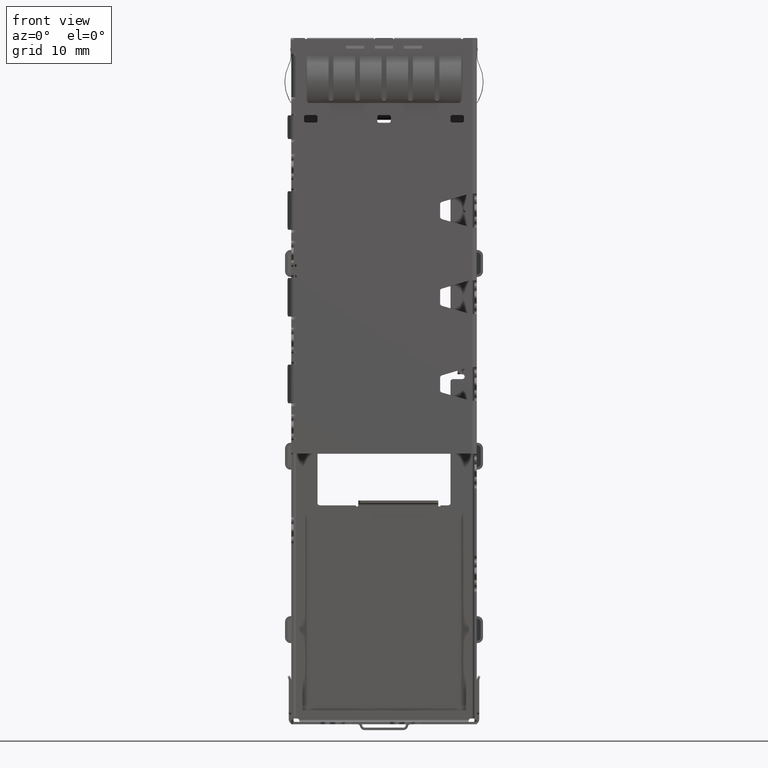
[diagram: clean part render]
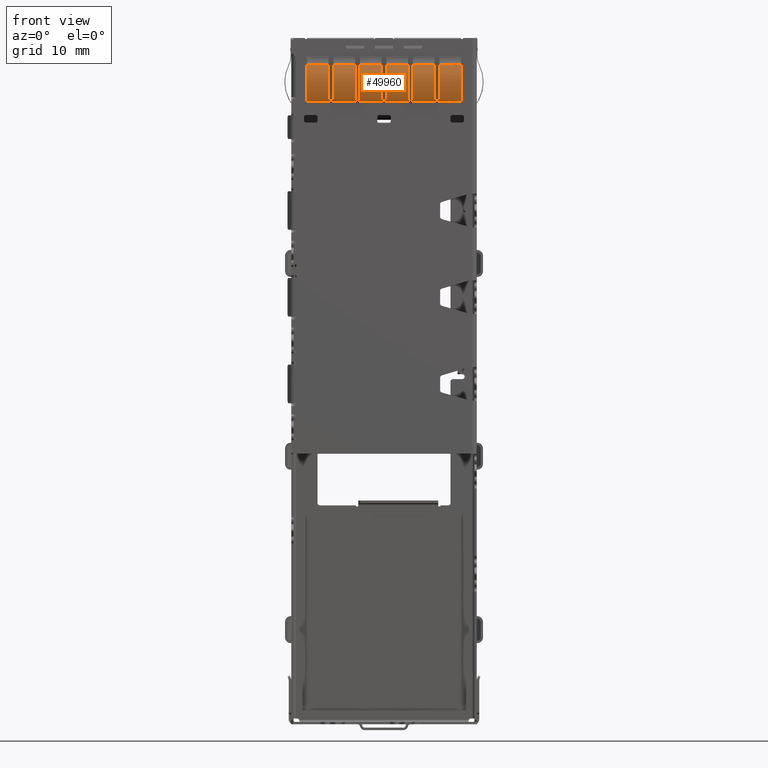
[diagram: same view with one face highlighted and labeled with its STEP entity id]
A machine part, front view. The second image highlights one B-rep face of the part: STEP entity #49960.
In plain terms, the highlighted cylindrical surface (partial cylindrical patch) has radius 4.0153 mm, axis along (-1, 0, 0).
Its self-contained STEP definition (entity closure, byte-faithful):
#54 = DIRECTION ( 'NONE',  ( -1.000000000000000000, 4.235164736271499769E-19, 4.235164736271499769E-19 ) ) ;
#455 = VECTOR ( 'NONE', #49056, 1000.000000000000000 ) ;
#705 = VERTEX_POINT ( 'NONE', #24596 ) ;
#770 = ORIENTED_EDGE ( 'NONE', *, *, #68800, .T. ) ;
#993 = CARTESIAN_POINT ( 'NONE',  ( -5.737573108332148841, 0.2225746253912066208, -6.282746775595231981 ) ) ;
#1711 = EDGE_CURVE ( 'NONE', #65231, #33174, #5435, .T. ) ;
#1960 = CARTESIAN_POINT ( 'NONE',  ( 0.1301086442512661423, 0.1562188122740799101, -6.411342872839279394 ) ) ;
#2039 = CARTESIAN_POINT ( 'NONE',  ( -2.998896241133398366, 0.2483748786855009827, -6.229764501679989408 ) ) ;
#2156 = VERTEX_POINT ( 'NONE', #37979 ) ;
#2925 = DIRECTION ( 'NONE',  ( 1.000000000000000000, -4.235164736271499769E-19, 4.574263953701799970E-35 ) ) ;
#3092 = EDGE_CURVE ( 'NONE', #16319, #65123, #22520, .T. ) ;
#3123 = ORIENTED_EDGE ( 'NONE', *, *, #60145, .T. ) ;
#3357 = DIRECTION ( 'NONE',  ( 1.000000000000000000, -4.235164736271499769E-19, 4.574263953701799970E-35 ) ) ;
#3405 = EDGE_CURVE ( 'NONE', #5142, #16319, #17511, .T. ) ;
#3829 = VERTEX_POINT ( 'NONE', #44001 ) ;
#4103 = CARTESIAN_POINT ( 'NONE',  ( -8.000000000000000000, 0.1406054267571263949, -6.439344117211829754 ) ) ;
#4681 = CARTESIAN_POINT ( 'NONE',  ( -5.748896241133701679, 0.2483748786880722592, -6.229764501674529775 ) ) ;
#4776 = ORIENTED_EDGE ( 'NONE', *, *, #52645, .F. ) ;
#5142 = VERTEX_POINT ( 'NONE', #50853 ) ;
#5416 = ORIENTED_EDGE ( 'NONE', *, *, #31249, .T. ) ;
#5435 = LINE ( 'NONE', #59445, #455 ) ;
#5653 = CARTESIAN_POINT ( 'NONE',  ( -7.993513589164161104, 0.1102179602496533989, -6.493442219711450747 ) ) ;
#6329 = CARTESIAN_POINT ( 'NONE',  ( -5.369891355748635853, 0.1562188122754382680, -6.411342872836698348 ) ) ;
#6569 = VECTOR ( 'NONE', #64633, 1000.000000000000000 ) ;
#6739 = ORIENTED_EDGE ( 'NONE', *, *, #40726, .T. ) ;
#6901 = CARTESIAN_POINT ( 'NONE',  ( -3.000000000000000000, 0.2575202760323520024, -6.210339292082520224 ) ) ;
#6906 = CARTESIAN_POINT ( 'NONE',  ( 7.993513589164161104, 0.1102179602496549948, -6.493442219711450747 ) ) ;
#7047 = ORIENTED_EDGE ( 'NONE', *, *, #55641, .F. ) ;
#7095 = ORIENTED_EDGE ( 'NONE', *, *, #56946, .F. ) ;
#7128 = CARTESIAN_POINT ( 'NONE',  ( -2.766149607866283944, 0.1432321234569960411, -6.434574431467881439 ) ) ;
#7150 = B_SPLINE_CURVE_WITH_KNOTS ( 'NONE', 3,
 ( #36557, #4681, #10066, #20739, #993, #65232, #27705, #64993, #48772, #38208, #54226, #32355, #64284, #37503, #6329, #43646, #33054, #11675 ),
 .UNSPECIFIED., .F., .F.,
 ( 4, 2, 2, 2, 2, 2, 2, 2, 4 ),
 ( 0.0000000000000000000, 0.06249999999999936162, 0.1249999999999987232, 0.2499999999999961697, 0.3749999999999936162, 0.4374999999999929501, 0.4999999999999922284, 0.7499999999999961142, 1.000000000000000000 ),
 .UNSPECIFIED. ) ;
#7239 = DIRECTION ( 'NONE',  ( 0.0000000000000000000, 1.080067538938007485E-16, 1.000000000000000000 ) ) ;
#7530 = CARTESIAN_POINT ( 'NONE',  ( 2.733850392134112628, 0.1432321234569960966, -6.434574431467882327 ) ) ;
#7980 = CARTESIAN_POINT ( 'NONE',  ( -0.01614960786565136988, 0.1432321234569582935, -6.434574431467948941 ) ) ;
#8436 = AXIS2_PLACEMENT_3D ( 'NONE', #61671, #13945, #35545 ) ;
#8457 = EDGE_CURVE ( 'NONE', #50873, #63718, #7150, .T. ) ;
#8546 = DIRECTION ( 'NONE',  ( 0.0000000000000000000, 1.080067538938007485E-16, 1.000000000000000000 ) ) ;
#9438 = DIRECTION ( 'NONE',  ( 0.0000000000000000000, 1.080067538938007485E-16, 1.000000000000000000 ) ) ;
#9457 = EDGE_CURVE ( 'NONE', #62789, #3829, #11879, .T. ) ;
#9506 = CARTESIAN_POINT ( 'NONE',  ( 5.252489052243460854, 0.2417618852760143322, -6.243476762291038540 ) ) ;
#10066 = CARTESIAN_POINT ( 'NONE',  ( -5.747510947753930566, 0.2417618852718462219, -6.243476762299608573 ) ) ;
#10205 = CARTESIAN_POINT ( 'NONE',  ( 5.347282101772747431, 0.1668143807777447418, -6.391205827051612332 ) ) ;
#10629 = LINE ( 'NONE', #48347, #37231 ) ;
#10632 = EDGE_CURVE ( 'NONE', #39480, #2156, #27485, .T. ) ;
#10974 = ORIENTED_EDGE ( 'NONE', *, *, #19736, .F. ) ;
#11373 = EDGE_LOOP ( 'NONE', ( #23139, #22508, #68121, #770, #64577, #68405, #4776, #26132, #3123, #60472, #67282, #41717, #66832, #11854, #12945, #53712, #5416, #7095, #7047, #6739, #61014, #54025, #66265, #24694, #29151, #10974 ) ) ;
#11675 = CARTESIAN_POINT ( 'NONE',  ( -5.250000000000000000, 0.2575202760323520024, -6.210339292082520224 ) ) ;
#11854 = ORIENTED_EDGE ( 'NONE', *, *, #1711, .F. ) ;
#11879 = CIRCLE ( 'NONE', #40181, 4.015312499999999396 ) ;
#12184 = CARTESIAN_POINT ( 'NONE',  ( 2.683643529413765272, 0.1470798920625091821, -6.427562267202789670 ) ) ;
#12243 = CARTESIAN_POINT ( 'NONE',  ( -2.831764705027707052, 0.1493145950041637748, -6.423480206780122437 ) ) ;
#12530 = CARTESIAN_POINT ( 'NONE',  ( 2.500000000000000000, 0.2575202760323520024, -6.210339292082520224 ) ) ;
#12654 = CARTESIAN_POINT ( 'NONE',  ( 2.597282101773314533, 0.1668143807775017140, -6.391205827052074184 ) ) ;
#12848 = LINE ( 'NONE', #37013, #43782 ) ;
#12854 = CARTESIAN_POINT ( 'NONE',  ( 0.2478714145050679996, 0.2269733755627568461, -6.275222196747027859 ) ) ;
#12945 = ORIENTED_EDGE ( 'NONE', *, *, #57608, .F. ) ;
#13079 = CARTESIAN_POINT ( 'NONE',  ( -0.2008219937744300243, 0.1893945002685938350, -6.348292812851465072 ) ) ;
#13554 = CARTESIAN_POINT ( 'NONE',  ( -0.2375731083333020854, 0.2225746253917660900, -6.282746775594121758 ) ) ;
#13945 = DIRECTION ( 'NONE',  ( 1.000000000000000000, -4.235164736271499769E-19, 4.574263953701799970E-35 ) ) ;
#14183 = EDGE_CURVE ( 'NONE', #62286, #42522, #52288, .T. ) ;
#15073 = CARTESIAN_POINT ( 'NONE',  ( 5.262426891667383977, 0.2225746253901168537, -6.282746775597434663 ) ) ;
#15247 = AXIS2_PLACEMENT_3D ( 'NONE', #17949, #54469, #7239 ) ;
#15448 = DIRECTION ( 'NONE',  ( 1.000000000000000000, -4.235164736271499769E-19, 4.574263953701799970E-35 ) ) ;
#16009 = CYLINDRICAL_SURFACE ( 'NONE', #34331, 4.015312499999999396 ) ;
#16141 = CARTESIAN_POINT ( 'NONE',  ( -8.000000000000000000, 0.1406054267571263949, -6.439344117211829754 ) ) ;
#16319 = VERTEX_POINT ( 'NONE', #48223 ) ;
#16352 = DIRECTION ( 'NONE',  ( 1.000000000000000000, -4.235164736271499769E-19, 4.574263953701799970E-35 ) ) ;
#16709 = EDGE_CURVE ( 'NONE', #57248, #65958, #17462, .T. ) ;
#16929 = CARTESIAN_POINT ( 'NONE',  ( -2.816356470588294858, 0.1470798920625197570, -6.427562267202771018 ) ) ;
#17041 = DIRECTION ( 'NONE',  ( 0.0000000000000000000, 1.080067538938007485E-16, 1.000000000000000000 ) ) ;
#17304 = EDGE_CURVE ( 'NONE', #65958, #3829, #42415, .T. ) ;
#17326 = CARTESIAN_POINT ( 'NONE',  ( 2.624039917988479687, 0.1581244498615030913, -6.407277893290376447 ) ) ;
#17462 = CIRCLE ( 'NONE', #53166, 4.015312499999999396 ) ;
#17511 = CIRCLE ( 'NONE', #39461, 4.015312499999999396 ) ;
#17608 = CARTESIAN_POINT ( 'NONE',  ( -2.685343758812362758, 0.1428474767557239289, -6.435273949204210808 ) ) ;
#17949 = CARTESIAN_POINT ( 'NONE',  ( -5.750000000000000000, -3.375312499999995275, -4.500000000000000000 ) ) ;
#18001 = CARTESIAN_POINT ( 'NONE',  ( 2.973467426253266321, 0.2000050275718235071, -6.328127338060399509 ) ) ;
#18148 = EDGE_CURVE ( 'NONE', #68577, #26918, #28834, .T. ) ;
#18211 = VERTEX_POINT ( 'NONE', #31362 ) ;
#18239 = CARTESIAN_POINT ( 'NONE',  ( 2.880108644254339989, 0.1562188122725964301, -6.411342872842099361 ) ) ;
#18677 = CARTESIAN_POINT ( 'NONE',  ( -0.2422081586230170058, 0.2292715014957452391, -6.269155873694986170 ) ) ;
#18896 = CARTESIAN_POINT ( 'NONE',  ( -0.2475109477548820547, 0.2417618852729075396, -6.243476762297441418 ) ) ;
#18947 = CARTESIAN_POINT ( 'NONE',  ( -0.2499999999999970302, 0.2127902748194699933, -2.697708971894639873 ) ) ;
#19736 = EDGE_CURVE ( 'NONE', #58782, #26918, #12848, .T. ) ;
#20739 = CARTESIAN_POINT ( 'NONE',  ( -5.742208158624864112, 0.2292715014983851551, -6.269155873689574499 ) ) ;
#21045 = DIRECTION ( 'NONE',  ( -1.000000000000000000, 4.235164736271499769E-19, 4.235164736271499769E-19 ) ) ;
#22071 = CARTESIAN_POINT ( 'NONE',  ( -8.000000000000000000, 0.2127902748194734905, -2.697708971894650087 ) ) ;
#22180 = CIRCLE ( 'NONE', #59451, 4.015312499999999396 ) ;
#22187 = AXIS2_PLACEMENT_3D ( 'NONE', #34764, #2925, #61563 ) ;
#22508 = ORIENTED_EDGE ( 'NONE', *, *, #41319, .T. ) ;
#22520 = LINE ( 'NONE', #31056, #57719 ) ;
#23115 = CARTESIAN_POINT ( 'NONE',  ( 2.531757359294101395, 0.2016334126537807636, -6.324600189571490283 ) ) ;
#23139 = ORIENTED_EDGE ( 'NONE', *, *, #35509, .T. ) ;
#23606 = CARTESIAN_POINT ( 'NONE',  ( -5.250000000000000000, 0.2575202760323520024, -6.210339292082520224 ) ) ;
#23784 = CARTESIAN_POINT ( 'NONE',  ( 0.06465624118510052143, 0.1428474767559268777, -6.435273949203839550 ) ) ;
#24011 = CARTESIAN_POINT ( 'NONE',  ( -0.2182426407025504778, 0.2016334126518772030, -6.324600189575344977 ) ) ;
#24251 = CARTESIAN_POINT ( 'NONE',  ( 0.2234674262563349223, 0.2000050275703399438, -6.328127338063215923 ) ) ;
#24596 = CARTESIAN_POINT ( 'NONE',  ( -2.500000000000000000, 0.2575202760323520024, -6.210339292082520224 ) ) ;
#24694 = ORIENTED_EDGE ( 'NONE', *, *, #40224, .T. ) ;
#25220 = DIRECTION ( 'NONE',  ( -1.000000000000000000, 4.235164736271499769E-19, -4.574263953701799970E-35 ) ) ;
#25527 = CARTESIAN_POINT ( 'NONE',  ( 5.374039917987629700, 0.1581244498618751548, -6.407277893289688997 ) ) ;
#25569 = DIRECTION ( 'NONE',  ( 1.000000000000000000, -4.235164736271499769E-19, 4.574263953701799970E-35 ) ) ;
#25579 = CIRCLE ( 'NONE', #15247, 4.015312499999999396 ) ;
#26132 = ORIENTED_EDGE ( 'NONE', *, *, #8457, .T. ) ;
#26302 = B_SPLINE_CURVE_WITH_KNOTS ( 'NONE', 3,
 ( #60374, #39442, #39198, #54962, #60827, #23115, #44153, #12654, #17326, #39676, #12184, #49762, #7530, #61061, #18239, #18001, #28673, #28454 ),
 .UNSPECIFIED., .F., .F.,
 ( 4, 2, 2, 2, 2, 2, 2, 2, 4 ),
 ( 0.0000000000000000000, 0.06250000000000016653, 0.1250000000000003331, 0.2500000000000012768, 0.3750000000000022204, 0.4375000000000013323, 0.5000000000000004441, 0.7500000000000002220, 1.000000000000000000 ),
 .UNSPECIFIED. ) ;
#26522 = VERTEX_POINT ( 'NONE', #47845 ) ;
#26734 = CARTESIAN_POINT ( 'NONE',  ( 5.250000000000000000, 0.2127902748194699933, -2.697708971894639873 ) ) ;
#26918 = VERTEX_POINT ( 'NONE', #47305 ) ;
#27285 = CARTESIAN_POINT ( 'NONE',  ( -7.997814552351628414, 0.1203188744005042055, -6.475780787841979524 ) ) ;
#27300 = CIRCLE ( 'NONE', #56513, 4.015312499999999396 ) ;
#27485 = LINE ( 'NONE', #66576, #34242 ) ;
#27705 = CARTESIAN_POINT ( 'NONE',  ( -5.700821993772398066, 0.1893945002683911916, -6.348292812851846989 ) ) ;
#28454 = CARTESIAN_POINT ( 'NONE',  ( 3.000000000000000000, 0.2575202760323520024, -6.210339292082520224 ) ) ;
#28512 = CARTESIAN_POINT ( 'NONE',  ( -2.526532573743865306, 0.2000050275674482569, -6.328127338068711971 ) ) ;
#28673 = CARTESIAN_POINT ( 'NONE',  ( 2.997871414502000231, 0.2269733755641140660, -6.275222196744148384 ) ) ;
#28823 = CARTESIAN_POINT ( 'NONE',  ( -5.750000000000000000, 0.2127902748194699933, -2.697708971894639873 ) ) ;
#28834 = CIRCLE ( 'NONE', #35631, 4.015312499999999396 ) ;
#29151 = ORIENTED_EDGE ( 'NONE', *, *, #18148, .T. ) ;
#29356 = CARTESIAN_POINT ( 'NONE',  ( -0.08176470502275702545, 0.1493145950039853620, -6.423480206780452839 ) ) ;
#29578 = CARTESIAN_POINT ( 'NONE',  ( -0.2499999999999970302, 0.2575202760323520024, -6.210339292082520224 ) ) ;
#29802 = DIRECTION ( 'NONE',  ( 0.0000000000000000000, 1.080067538938007485E-16, 1.000000000000000000 ) ) ;
#30133 = FACE_OUTER_BOUND ( 'NONE', #11373, .T. ) ;
#30587 = DIRECTION ( 'NONE',  ( -1.000000000000000000, 4.235164736271499769E-19, 4.235164736271499769E-19 ) ) ;
#30654 = CARTESIAN_POINT ( 'NONE',  ( 5.281757359298032029, 0.2016334126520741010, -6.324600189574909770 ) ) ;
#30887 = CARTESIAN_POINT ( 'NONE',  ( 5.747871414501934950, 0.2269733755627690863, -6.275222196747004766 ) ) ;
#30893 = B_SPLINE_CURVE_WITH_KNOTS ( 'NONE', 3,
 ( #29578, #45504, #18896, #18677, #13554, #24011, #13079, #55393, #39411, #29356, #66675, #56326, #7980, #23784, #1960, #24251, #12854, #34706 ),
 .UNSPECIFIED., .F., .F.,
 ( 4, 2, 2, 2, 2, 2, 2, 2, 4 ),
 ( 0.0000000000000000000, 0.06249999999999845957, 0.1249999999999969191, 0.2499999999999965583, 0.3749999999999961697, 0.4374999999999966138, 0.4999999999999970024, 0.7499999999999984457, 1.000000000000000000 ),
 .UNSPECIFIED. ) ;
#30929 = CARTESIAN_POINT ( 'NONE',  ( 8.000000000000000000, 0.1305614674007248011, -6.457553230511209996 ) ) ;
#31056 = CARTESIAN_POINT ( 'NONE',  ( 8.000000000000000000, 0.2127902748194719917, -2.697708971894639873 ) ) ;
#31249 = EDGE_CURVE ( 'NONE', #45049, #18211, #52929, .T. ) ;
#31362 = CARTESIAN_POINT ( 'NONE',  ( 0.2500000000000035527, 0.2127902748194734905, -2.697708971894650087 ) ) ;
#31656 = B_SPLINE_CURVE_WITH_KNOTS ( 'NONE', 3,
 ( #57451, #30929, #46623, #68246 ),
 .UNSPECIFIED., .F., .F.,
 ( 4, 4 ),
 ( 0.0000000000000000000, 6.238650767861100540E-05 ),
 .UNSPECIFIED. ) ;
#32355 = CARTESIAN_POINT ( 'NONE',  ( -5.534187117486885299, 0.1440416960692267323, -6.433103851378330518 ) ) ;
#32705 = CARTESIAN_POINT ( 'NONE',  ( 8.000000000000000000, 0.2127902748194719917, -2.697708971894639873 ) ) ;
#33054 = CARTESIAN_POINT ( 'NONE',  ( -5.252128585495030144, 0.2269733755615142567, -6.275222196749668413 ) ) ;
#33174 = VERTEX_POINT ( 'NONE', #40559 ) ;
#33184 = CARTESIAN_POINT ( 'NONE',  ( -2.997510947755612776, 0.2417618852735288204, -6.243476762296158000 ) ) ;
#34242 = VECTOR ( 'NONE', #39534, 1000.000000000000000 ) ;
#34331 = AXIS2_PLACEMENT_3D ( 'NONE', #57576, #15448, #9438 ) ;
#34377 = CARTESIAN_POINT ( 'NONE',  ( 2.500000000000000000, -3.375312499999995275, -4.500000000000000000 ) ) ;
#34706 = CARTESIAN_POINT ( 'NONE',  ( 0.2500000000000035527, 0.2575202760323520024, -6.210339292082520224 ) ) ;
#34764 = CARTESIAN_POINT ( 'NONE',  ( 0.2500000000000035527, -3.375312499999995275, -4.500000000000000000 ) ) ;
#34945 = CARTESIAN_POINT ( 'NONE',  ( -2.500000000000000000, -3.375312499999995275, -4.500000000000000000 ) ) ;
#35509 = EDGE_CURVE ( 'NONE', #58782, #26522, #27300, .T. ) ;
#35545 = DIRECTION ( 'NONE',  ( 0.0000000000000000000, 1.080067538938007485E-16, 1.000000000000000000 ) ) ;
#35631 = AXIS2_PLACEMENT_3D ( 'NONE', #42391, #25569, #46863 ) ;
#35730 = EDGE_CURVE ( 'NONE', #60122, #42522, #10629, .T. ) ;
#35996 = CARTESIAN_POINT ( 'NONE',  ( 5.465812882512813609, 0.1440416960693561843, -6.433103851378094262 ) ) ;
#36218 = CARTESIAN_POINT ( 'NONE',  ( 5.250000000000000000, 0.2575202760323520024, -6.210339292082520224 ) ) ;
#36557 = CARTESIAN_POINT ( 'NONE',  ( -5.750000000000000000, 0.2575202760323520024, -6.210339292082520224 ) ) ;
#37013 = CARTESIAN_POINT ( 'NONE',  ( 8.000000000000000000, 0.2127902748194719917, -2.697708971894639873 ) ) ;
#37231 = VECTOR ( 'NONE', #48819, 1000.000000000000000 ) ;
#37503 = CARTESIAN_POINT ( 'NONE',  ( -5.435343758812701154, 0.1428474767555510394, -6.435273949204525223 ) ) ;
#37516 = CARTESIAN_POINT ( 'NONE',  ( -0.2499999999999970302, -3.375312499999995275, -4.500000000000000000 ) ) ;
#37822 = CARTESIAN_POINT ( 'NONE',  ( -0.2499999999999970302, 0.2575202760323520024, -6.210339292082520224 ) ) ;
#37979 = CARTESIAN_POINT ( 'NONE',  ( -7.993513589164161104, 0.1102179602496533989, -6.493442219711450747 ) ) ;
#38208 = CARTESIAN_POINT ( 'NONE',  ( -5.581764705025808126, 0.1493145950042961134, -6.423480206779883517 ) ) ;
#38343 = CARTESIAN_POINT ( 'NONE',  ( -2.875960082013743868, 0.1581244498615130001, -6.407277893290357795 ) ) ;
#39021 = CARTESIAN_POINT ( 'NONE',  ( -2.992208158623082870, 0.2292715014957387998, -6.269155873695005710 ) ) ;
#39198 = CARTESIAN_POINT ( 'NONE',  ( 2.502489052244202039, 0.2417618852737654367, -6.243476762295665061 ) ) ;
#39300 = DIRECTION ( 'NONE',  ( 0.0000000000000000000, 1.080067538938007485E-16, 1.000000000000000000 ) ) ;
#39411 = CARTESIAN_POINT ( 'NONE',  ( -0.1259600820087934669, 0.1581244498613326166, -6.407277893290693527 ) ) ;
#39442 = CARTESIAN_POINT ( 'NONE',  ( 2.501103758866634941, 0.2483748786851586454, -6.229764501680718602 ) ) ;
#39461 = AXIS2_PLACEMENT_3D ( 'NONE', #40147, #3357, #40605 ) ;
#39480 = VERTEX_POINT ( 'NONE', #6906 ) ;
#39534 = DIRECTION ( 'NONE',  ( -1.000000000000000000, 4.235164736271499769E-19, 4.235164736271499769E-19 ) ) ;
#39676 = CARTESIAN_POINT ( 'NONE',  ( 2.668235294974528937, 0.1493145950041537828, -6.423480206780141977 ) ) ;
#39940 = CIRCLE ( 'NONE', #44487, 4.015312499999999396 ) ;
#40018 = CARTESIAN_POINT ( 'NONE',  ( -8.000000000000000000, -3.375312499999995275, -4.500000000000000000 ) ) ;
#40147 = CARTESIAN_POINT ( 'NONE',  ( -3.000000000000000000, -3.375312499999995275, -4.500000000000000000 ) ) ;
#40181 = AXIS2_PLACEMENT_3D ( 'NONE', #57897, #42628, #68699 ) ;
#40224 = EDGE_CURVE ( 'NONE', #57248, #68577, #47813, .T. ) ;
#40498 = CARTESIAN_POINT ( 'NONE',  ( 5.750000000000000000, 0.2575202760323520024, -6.210339292082520224 ) ) ;
#40559 = CARTESIAN_POINT ( 'NONE',  ( -2.500000000000000000, 0.2127902748194734905, -2.697708971894650087 ) ) ;
#40605 = DIRECTION ( 'NONE',  ( 0.0000000000000000000, 1.080067538938007485E-16, 1.000000000000000000 ) ) ;
#40726 = EDGE_CURVE ( 'NONE', #51492, #62789, #26302, .T. ) ;
#41195 = CARTESIAN_POINT ( 'NONE',  ( 5.750000000000000000, 0.2575202760323520024, -6.210339292082520224 ) ) ;
#41319 = EDGE_CURVE ( 'NONE', #26522, #39480, #31656, .T. ) ;
#41440 = CARTESIAN_POINT ( 'NONE',  ( 3.000000000000000000, 0.2575202760323520024, -6.210339292082520224 ) ) ;
#41717 = ORIENTED_EDGE ( 'NONE', *, *, #50688, .T. ) ;
#42105 = CARTESIAN_POINT ( 'NONE',  ( 5.433643529412969464, 0.1470798920628544337, -6.427562267202159063 ) ) ;
#42391 = CARTESIAN_POINT ( 'NONE',  ( 5.750000000000000000, -3.375312499999995275, -4.500000000000000000 ) ) ;
#42415 = LINE ( 'NONE', #32705, #6569 ) ;
#42522 = VERTEX_POINT ( 'NONE', #22071 ) ;
#42628 = DIRECTION ( 'NONE',  ( 1.000000000000000000, -4.235164736271499769E-19, 4.574263953701799970E-35 ) ) ;
#42974 = CARTESIAN_POINT ( 'NONE',  ( -8.000000000000600409, 0.1305614674006999876, -6.457553230511350328 ) ) ;
#43448 = VERTEX_POINT ( 'NONE', #65909 ) ;
#43646 = CARTESIAN_POINT ( 'NONE',  ( -5.276532573743764942, 0.2000050275689814472, -6.328127338065799634 ) ) ;
#43782 = VECTOR ( 'NONE', #54, 1000.000000000000000 ) ;
#43979 = CARTESIAN_POINT ( 'NONE',  ( -2.619891355748531492, 0.1562188122769715970, -6.411342872833783346 ) ) ;
#44001 = CARTESIAN_POINT ( 'NONE',  ( 3.000000000000000000, 0.2127902748194734905, -2.697708971894650087 ) ) ;
#44153 = CARTESIAN_POINT ( 'NONE',  ( 2.549178006227375448, 0.1893945002684819801, -6.348292812851674682 ) ) ;
#44217 = CARTESIAN_POINT ( 'NONE',  ( -2.987573108330483507, 0.2225746253887428416, -6.282746775600187128 ) ) ;
#44487 = AXIS2_PLACEMENT_3D ( 'NONE', #37516, #16352, #17041 ) ;
#45049 = VERTEX_POINT ( 'NONE', #47670 ) ;
#45504 = CARTESIAN_POINT ( 'NONE',  ( -0.2488962411322329649, 0.2483748786836081357, -6.229764501684011968 ) ) ;
#45841 = DIRECTION ( 'NONE',  ( 1.000000000000000000, -4.235164736271499769E-19, 4.574263953701799970E-35 ) ) ;
#45995 = CARTESIAN_POINT ( 'NONE',  ( 8.000000000000000000, 0.2127902748194699933, -2.697708971894639873 ) ) ;
#46056 = DIRECTION ( 'NONE',  ( 0.0000000000000000000, 1.080067538938007485E-16, 1.000000000000000000 ) ) ;
#46623 = CARTESIAN_POINT ( 'NONE',  ( 7.997814552352268791, 0.1203188744005070088, -6.475780787841969754 ) ) ;
#46811 = CARTESIAN_POINT ( 'NONE',  ( 5.257791841377732034, 0.2292715014942169893, -6.269155873698145420 ) ) ;
#46863 = DIRECTION ( 'NONE',  ( 0.0000000000000000000, 1.080067538938007485E-16, 1.000000000000000000 ) ) ;
#47049 = CARTESIAN_POINT ( 'NONE',  ( 5.418235294973666960, 0.1493145950045271786, -6.423480206779458968 ) ) ;
#47268 = CARTESIAN_POINT ( 'NONE',  ( 5.483850392135614982, 0.1432321234571025947, -6.434574431467686040 ) ) ;
#47305 = CARTESIAN_POINT ( 'NONE',  ( 5.750000000000000000, 0.2127902748194699933, -2.697708971894639873 ) ) ;
#47670 = CARTESIAN_POINT ( 'NONE',  ( 0.2500000000000035527, 0.2575202760323520024, -6.210339292082520224 ) ) ;
#47813 = B_SPLINE_CURVE_WITH_KNOTS ( 'NONE', 3,
 ( #36218, #58095, #9506, #46811, #15073, #30654, #52241, #10205, #25527, #47049, #42105, #35996, #47268, #52471, #68206, #68668, #30887, #41195 ),
 .UNSPECIFIED., .F., .F.,
 ( 4, 2, 2, 2, 2, 2, 2, 2, 4 ),
 ( 0.0000000000000000000, 0.06250000000000029143, 0.1250000000000005829, 0.2499999999999985567, 0.3749999999999965028, 0.4374999999999955591, 0.4999999999999945599, 0.7499999999999972244, 1.000000000000000000 ),
 .UNSPECIFIED. ) ;
#47845 = CARTESIAN_POINT ( 'NONE',  ( 8.000000000000000000, 0.1406054267571282268, -6.439344117211829754 ) ) ;
#48223 = CARTESIAN_POINT ( 'NONE',  ( -3.000000000000000000, 0.2127902748194699933, -2.697708971894639873 ) ) ;
#48347 = CARTESIAN_POINT ( 'NONE',  ( 8.000000000000000000, 0.2127902748194719917, -2.697708971894639873 ) ) ;
#48716 = EDGE_CURVE ( 'NONE', #705, #33174, #22180, .T. ) ;
#48772 = CARTESIAN_POINT ( 'NONE',  ( -5.625960082011842722, 0.1581244498616425076, -6.407277893290118875 ) ) ;
#48819 = DIRECTION ( 'NONE',  ( -1.000000000000000000, 4.235164736271499769E-19, 4.235164736271499769E-19 ) ) ;
#49056 = DIRECTION ( 'NONE',  ( -1.000000000000000000, 4.235164736271499769E-19, 4.235164736271499769E-19 ) ) ;
#49596 = CARTESIAN_POINT ( 'NONE',  ( -2.784187117488001295, 0.1440416960691426052, -6.433103851378482396 ) ) ;
#49762 = CARTESIAN_POINT ( 'NONE',  ( 2.715812882513329640, 0.1440416960691350001, -6.433103851378497495 ) ) ;
#49960 = ADVANCED_FACE ( 'NONE', ( #30133 ), #16009, .T. ) ;
#50098 = DIRECTION ( 'NONE',  ( 0.0000000000000000000, 1.080067538938007485E-16, 1.000000000000000000 ) ) ;
#50427 = DIRECTION ( 'NONE',  ( 1.000000000000000000, -4.235164736271499769E-19, 4.574263953701799970E-35 ) ) ;
#50688 = EDGE_CURVE ( 'NONE', #5142, #705, #64981, .T. ) ;
#50853 = CARTESIAN_POINT ( 'NONE',  ( -3.000000000000000000, 0.2575202760323520024, -6.210339292082520224 ) ) ;
#50873 = VERTEX_POINT ( 'NONE', #61584 ) ;
#50924 = VECTOR ( 'NONE', #30587, 1000.000000000000000 ) ;
#51492 = VERTEX_POINT ( 'NONE', #12530 ) ;
#51716 = CARTESIAN_POINT ( 'NONE',  ( 8.000000000000000000, 0.2127902748194719917, -2.697708971894639873 ) ) ;
#51818 = LINE ( 'NONE', #51716, #50924 ) ;
#52241 = CARTESIAN_POINT ( 'NONE',  ( 5.299178006227946547, 0.1893945002682390355, -6.348292812852139200 ) ) ;
#52288 = CIRCLE ( 'NONE', #63304, 4.015312499999999396 ) ;
#52471 = CARTESIAN_POINT ( 'NONE',  ( 5.564656241180040652, 0.1428474767552978530, -6.435273949204986188 ) ) ;
#52645 = EDGE_CURVE ( 'NONE', #50873, #60122, #25579, .T. ) ;
#52929 = CIRCLE ( 'NONE', #22187, 4.015312499999999396 ) ;
#53166 = AXIS2_PLACEMENT_3D ( 'NONE', #61614, #45841, #8546 ) ;
#53712 = ORIENTED_EDGE ( 'NONE', *, *, #67941, .T. ) ;
#54025 = ORIENTED_EDGE ( 'NONE', *, *, #17304, .F. ) ;
#54226 = CARTESIAN_POINT ( 'NONE',  ( -5.566356470586550031, 0.1470798920626439354, -6.427562267202543644 ) ) ;
#54469 = DIRECTION ( 'NONE',  ( 1.000000000000000000, -4.235164736271499769E-19, 4.574263953701799970E-35 ) ) ;
#54962 = CARTESIAN_POINT ( 'NONE',  ( 2.507791841377001063, 0.2292715014962385944, -6.269155873693986081 ) ) ;
#55018 = CARTESIAN_POINT ( 'NONE',  ( -2.500000000000000000, 0.2575202760323520024, -6.210339292082520224 ) ) ;
#55250 = CARTESIAN_POINT ( 'NONE',  ( -2.502128585495132285, 0.2269733755601117953, -6.275222196752651804 ) ) ;
#55393 = CARTESIAN_POINT ( 'NONE',  ( -0.1527178982248638128, 0.1668143807773899978, -6.391205827052289123 ) ) ;
#55451 = CARTESIAN_POINT ( 'NONE',  ( -5.250000000000000000, 0.2127902748194734905, -2.697708971894650087 ) ) ;
#55641 = EDGE_CURVE ( 'NONE', #51492, #43448, #63854, .T. ) ;
#56234 = DIRECTION ( 'NONE',  ( 1.000000000000000000, -4.235164736271499769E-19, 4.574263953701799970E-35 ) ) ;
#56326 = CARTESIAN_POINT ( 'NONE',  ( -0.03418711748511494425, 0.1440416960690421300, -6.433103851378664473 ) ) ;
#56396 = CIRCLE ( 'NONE', #8436, 4.015312499999999396 ) ;
#56513 = AXIS2_PLACEMENT_3D ( 'NONE', #57329, #25220, #46056 ) ;
#56946 = EDGE_CURVE ( 'NONE', #43448, #18211, #51818, .T. ) ;
#57248 = VERTEX_POINT ( 'NONE', #65302 ) ;
#57329 = CARTESIAN_POINT ( 'NONE',  ( 8.000000000000000000, -3.375312499999995275, -4.500000000000000000 ) ) ;
#57420 = B_SPLINE_CURVE_WITH_KNOTS ( 'NONE', 3,
 ( #5653, #27285, #42974, #16141 ),
 .UNSPECIFIED., .F., .F.,
 ( 4, 4 ),
 ( 0.0000000000000000000, 6.238650767860801029E-05 ),
 .UNSPECIFIED. ) ;
#57451 = CARTESIAN_POINT ( 'NONE',  ( 8.000000000000000000, 0.1406054267571282268, -6.439344117211829754 ) ) ;
#57576 = CARTESIAN_POINT ( 'NONE',  ( -29.52508145731879807, -3.375312499999995275, -4.500000000000000000 ) ) ;
#57608 = EDGE_CURVE ( 'NONE', #62447, #65231, #39940, .T. ) ;
#57719 = VECTOR ( 'NONE', #21045, 1000.000000000000000 ) ;
#57897 = CARTESIAN_POINT ( 'NONE',  ( 3.000000000000000000, -3.375312499999995275, -4.500000000000000000 ) ) ;
#58095 = CARTESIAN_POINT ( 'NONE',  ( 5.251103758866570104, 0.2483748786856893043, -6.229764501679590616 ) ) ;
#58782 = VERTEX_POINT ( 'NONE', #45995 ) ;
#59445 = CARTESIAN_POINT ( 'NONE',  ( 8.000000000000000000, 0.2127902748194719917, -2.697708971894639873 ) ) ;
#59451 = AXIS2_PLACEMENT_3D ( 'NONE', #34945, #50427, #29802 ) ;
#59968 = CARTESIAN_POINT ( 'NONE',  ( -2.968242640704281676, 0.2016334126536914462, -6.324600189571664366 ) ) ;
#60122 = VERTEX_POINT ( 'NONE', #28823 ) ;
#60145 = EDGE_CURVE ( 'NONE', #63718, #65123, #56396, .T. ) ;
#60196 = CARTESIAN_POINT ( 'NONE',  ( -2.902717898228165616, 0.1668143807775084309, -6.391205827052063526 ) ) ;
#60374 = CARTESIAN_POINT ( 'NONE',  ( 2.500000000000000000, 0.2575202760323520024, -6.210339292082520224 ) ) ;
#60431 = CARTESIAN_POINT ( 'NONE',  ( -2.950821993771132412, 0.1893945002684753742, -6.348292812851688893 ) ) ;
#60472 = ORIENTED_EDGE ( 'NONE', *, *, #3092, .F. ) ;
#60827 = CARTESIAN_POINT ( 'NONE',  ( 2.512426891669645279, 0.2225746253889810677, -6.282746775599707512 ) ) ;
#61014 = ORIENTED_EDGE ( 'NONE', *, *, #9457, .T. ) ;
#61061 = CARTESIAN_POINT ( 'NONE',  ( 2.814656241186286323, 0.1428474767557239289, -6.435273949204209920 ) ) ;
#61563 = DIRECTION ( 'NONE',  ( 0.0000000000000000000, 1.080067538938007485E-16, 1.000000000000000000 ) ) ;
#61584 = CARTESIAN_POINT ( 'NONE',  ( -5.750000000000000000, 0.2575202760323520024, -6.210339292082520224 ) ) ;
#61614 = CARTESIAN_POINT ( 'NONE',  ( 5.250000000000000000, -3.375312499999995275, -4.500000000000000000 ) ) ;
#61671 = CARTESIAN_POINT ( 'NONE',  ( -5.250000000000000000, -3.375312499999995275, -4.500000000000000000 ) ) ;
#62286 = VERTEX_POINT ( 'NONE', #4103 ) ;
#62447 = VERTEX_POINT ( 'NONE', #37822 ) ;
#62789 = VERTEX_POINT ( 'NONE', #41440 ) ;
#63304 = AXIS2_PLACEMENT_3D ( 'NONE', #40018, #56234, #50098 ) ;
#63718 = VERTEX_POINT ( 'NONE', #23606 ) ;
#63854 = CIRCLE ( 'NONE', #66000, 4.015312499999999396 ) ;
#64284 = CARTESIAN_POINT ( 'NONE',  ( -5.516149607866198679, 0.1432321234570523294, -6.434574431467778410 ) ) ;
#64577 = ORIENTED_EDGE ( 'NONE', *, *, #14183, .T. ) ;
#64633 = DIRECTION ( 'NONE',  ( -1.000000000000000000, 4.235164736271499769E-19, 4.235164736271499769E-19 ) ) ;
#64981 = B_SPLINE_CURVE_WITH_KNOTS ( 'NONE', 3,
 ( #6901, #2039, #33184, #39021, #44217, #59968, #60431, #60196, #38343, #12243, #16929, #49596, #7128, #17608, #43979, #28512, #55250, #55018 ),
 .UNSPECIFIED., .F., .F.,
 ( 4, 2, 2, 2, 2, 2, 2, 2, 4 ),
 ( 0.0000000000000000000, 0.06250000000000154043, 0.1250000000000030809, 0.2500000000000034972, 0.3750000000000038858, 0.4375000000000035527, 0.5000000000000032196, 0.7500000000000015543, 1.000000000000000000 ),
 .UNSPECIFIED. ) ;
#64993 = CARTESIAN_POINT ( 'NONE',  ( -5.652717898226899074, 0.1668143807775925580, -6.391205827051903654 ) ) ;
#65123 = VERTEX_POINT ( 'NONE', #55451 ) ;
#65231 = VERTEX_POINT ( 'NONE', #18947 ) ;
#65232 = CARTESIAN_POINT ( 'NONE',  ( -5.718242640704847446, 0.2016334126536960814, -6.324600189571716768 ) ) ;
#65302 = CARTESIAN_POINT ( 'NONE',  ( 5.250000000000000000, 0.2575202760323520024, -6.210339292082520224 ) ) ;
#65909 = CARTESIAN_POINT ( 'NONE',  ( 2.500000000000000000, 0.2127902748194699933, -2.697708971894639873 ) ) ;
#65958 = VERTEX_POINT ( 'NONE', #26734 ) ;
#66000 = AXIS2_PLACEMENT_3D ( 'NONE', #34377, #66090, #39300 ) ;
#66090 = DIRECTION ( 'NONE',  ( 1.000000000000000000, -4.235164736271499769E-19, 4.574263953701799970E-35 ) ) ;
#66265 = ORIENTED_EDGE ( 'NONE', *, *, #16709, .F. ) ;
#66576 = CARTESIAN_POINT ( 'NONE',  ( 8.000000000000000000, 0.1102179602496533989, -6.493442219711450747 ) ) ;
#66675 = CARTESIAN_POINT ( 'NONE',  ( -0.06635647058375794549, 0.1470798920623557215, -6.427562267203069446 ) ) ;
#66832 = ORIENTED_EDGE ( 'NONE', *, *, #48716, .T. ) ;
#67282 = ORIENTED_EDGE ( 'NONE', *, *, #3405, .F. ) ;
#67941 = EDGE_CURVE ( 'NONE', #62447, #45049, #30893, .T. ) ;
#68121 = ORIENTED_EDGE ( 'NONE', *, *, #10632, .T. ) ;
#68206 = CARTESIAN_POINT ( 'NONE',  ( 5.630108644254408823, 0.1562188122740665874, -6.411342872839305151 ) ) ;
#68246 = CARTESIAN_POINT ( 'NONE',  ( 7.993513589164161104, 0.1102179602496549948, -6.493442219711450747 ) ) ;
#68405 = ORIENTED_EDGE ( 'NONE', *, *, #35730, .F. ) ;
#68577 = VERTEX_POINT ( 'NONE', #40498 ) ;
#68668 = CARTESIAN_POINT ( 'NONE',  ( 5.723467426253201928, 0.2000050275703532110, -6.328127338063192830 ) ) ;
#68699 = DIRECTION ( 'NONE',  ( 0.0000000000000000000, 1.080067538938007485E-16, 1.000000000000000000 ) ) ;
#68800 = EDGE_CURVE ( 'NONE', #2156, #62286, #57420, .T. ) ;